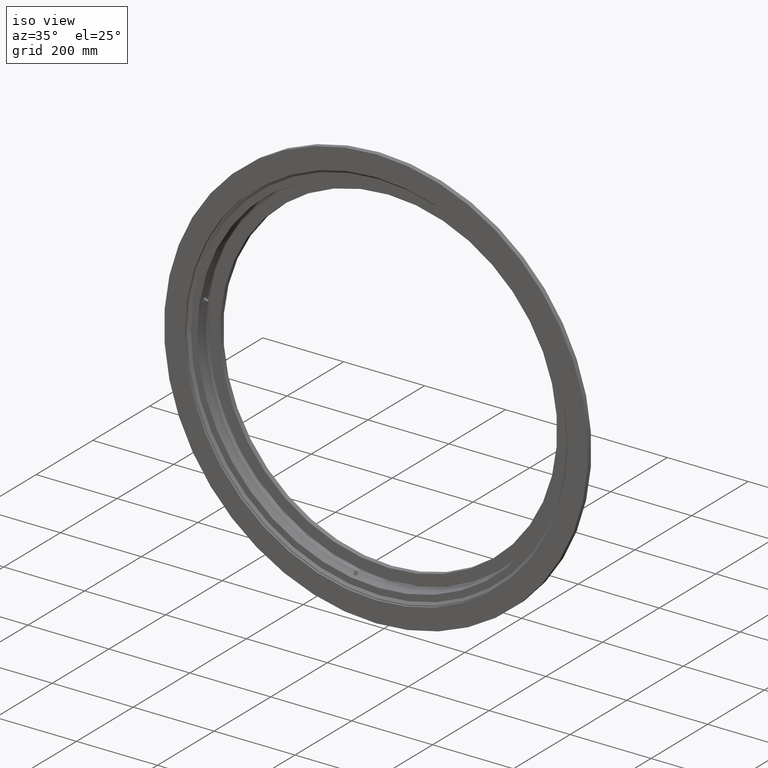
[diagram: clean part render]
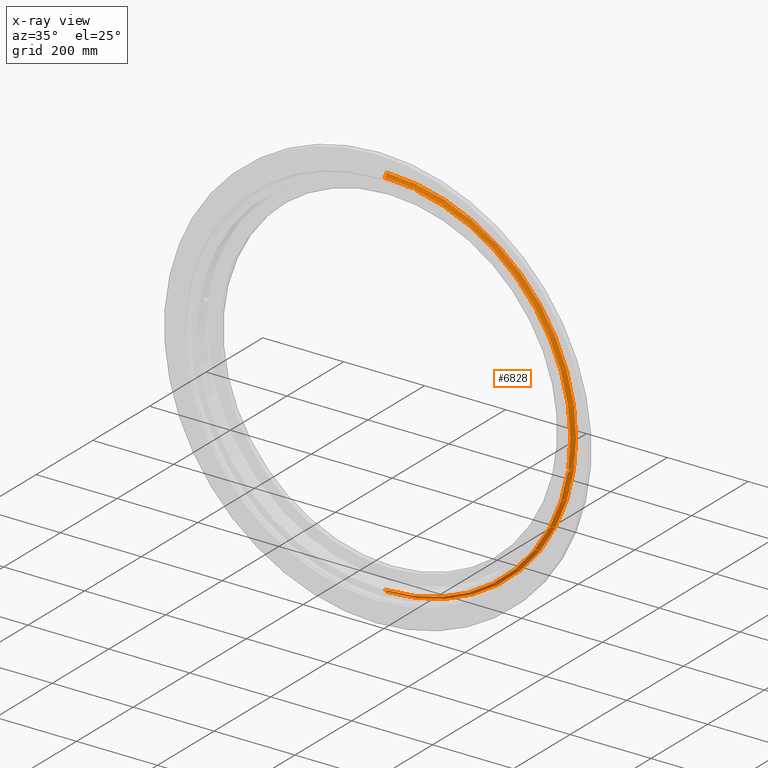
[diagram: x-ray — body ghosted, one internal face saturated and labeled with its STEP entity id]
A machine part, iso view, then the same camera in x-ray: the body is ghosted and one INTERNAL B-rep face — a face not visible from any outside direction — is saturated and labeled: STEP entity #6828.
In plain terms, the highlighted toroidal blend (fillet) surface has major radius 470.5 mm and minor (blend) radius 9.75 mm.
Its self-contained STEP definition (entity closure, byte-faithful):
#30 = CARTESIAN_POINT ( 'NONE',  ( 454.5167522345909100, 7.063376904789305800E-009, -75.53200936106139800 ) ) ;
#120 = EDGE_LOOP ( 'NONE', ( #3820, #3185, #3306, #6216, #154, #4078, #5155, #4867 ) ) ;
#154 = ORIENTED_EDGE ( 'NONE', *, *, #2843, .T. ) ;
#258 = DIRECTION ( 'NONE',  ( 0.0000000000000000000, 2.727064569436389700E-017, 1.000000000000000000 ) ) ;
#262 = VERTEX_POINT ( 'NONE', #3271 ) ;
#311 = CARTESIAN_POINT ( 'NONE',  ( 0.0000000000000000000, -1.507181843698312800E-014, 3.256198623627719100E-032 ) ) ;
#345 = CARTESIAN_POINT ( 'NONE',  ( 455.7563578420638400, 2.317145292477675900, -69.51898305825247300 ) ) ;
#378 = CARTESIAN_POINT ( 'NONE',  ( 455.3448283880019900, 3.142895896286841000, -73.69612099602652200 ) ) ;
#401 = CARTESIAN_POINT ( 'NONE',  ( 68.64254123647485500, 0.4638628217724400400, 455.6166510490828000 ) ) ;
#424 = CARTESIAN_POINT ( 'NONE',  ( 71.72304922026430100, 3.477345596098155400, 455.7823593507980600 ) ) ;
#442 = AXIS2_PLACEMENT_3D ( 'NONE', #2697, #7038, #3336 ) ;
#449 = CARTESIAN_POINT ( 'NONE',  ( 75.19942488686113800, 1.555922517842454300, 454.6961671188512900 ) ) ;
#880 = AXIS2_PLACEMENT_3D ( 'NONE', #3360, #7673, #3975 ) ;
#939 = DIRECTION ( 'NONE',  ( 0.0000000000000000000, 2.727064569436389700E-017, 1.000000000000000000 ) ) ;
#947 = FACE_OUTER_BOUND ( 'NONE', #120, .T. ) ;
#972 = AXIS2_PLACEMENT_3D ( 'NONE', #1571, #5904, #2181 ) ;
#981 = CARTESIAN_POINT ( 'NONE',  ( 455.8059959938030900, 2.780946763999005500, -70.02857579494249800 ) ) ;
#1005 = CARTESIAN_POINT ( 'NONE',  ( 455.1371690322586100, 2.780666092569631200, -74.25089298928098500 ) ) ;
#1023 = CARTESIAN_POINT ( 'NONE',  ( 68.80788981247546600, 1.136502601490754200, 455.6480176034600600 ) ) ;
#1047 = CARTESIAN_POINT ( 'NONE',  ( 72.40505526101979700, 3.500079167083206300, 455.6834672464926800 ) ) ;
#1076 = CARTESIAN_POINT ( 'NONE',  ( 75.42581188718851600, 0.9158801729350061200, 454.5753988342736400 ) ) ;
#1124 = CARTESIAN_POINT ( 'NONE',  ( 0.0000000000000000000, -1.507181843698312800E-014, 3.256198623627719100E-032 ) ) ;
#1189 = DIRECTION ( 'NONE',  ( 0.0000000000000000000, 2.727064569436389700E-017, 1.000000000000000000 ) ) ;
#1211 = EDGE_CURVE ( 'NONE', #1913, #2830, #3311, .T. ) ;
#1345 = CIRCLE ( 'NONE', #7830, 460.7500000000000000 ) ;
#1424 = EDGE_CURVE ( 'NONE', #262, #6254, #6522, .T. ) ;
#1570 = CARTESIAN_POINT ( 'NONE',  ( 75.53200936105980600, 7.039143815071931900E-009, 454.5167522345911900 ) ) ;
#1571 = CARTESIAN_POINT ( 'NONE',  ( 0.0000000000000000000, 9.486832980505129200, -1.104895824552873100E-015 ) ) ;
#1584 = AXIS2_PLACEMENT_3D ( 'NONE', #3034, #7363, #1189 ) ;
#1597 = CARTESIAN_POINT ( 'NONE',  ( 455.8320134549821300, 3.143848597389569100, -70.62232024105063000 ) ) ;
#1624 = CARTESIAN_POINT ( 'NONE',  ( 454.9308499952430200, 2.312723279783866400, -74.72380262887368500 ) ) ;
#1649 = CARTESIAN_POINT ( 'NONE',  ( 69.10434197384051900, 1.760785456273283600, 455.6985077470280300 ) ) ;
#1680 = CARTESIAN_POINT ( 'NONE',  ( 73.07506745097471400, 3.386280404545843700, 455.5328643036357900 ) ) ;
#1699 = CARTESIAN_POINT ( 'NONE',  ( 75.53200936108575500, 0.2299275658382368400, 454.5167522347552400 ) ) ;
#1757 = DIRECTION ( 'NONE',  ( 0.0000000000000000000, 2.727064569436389700E-017, 1.000000000000000000 ) ) ;
#1913 = VERTEX_POINT ( 'NONE', #1570 ) ;
#1938 = CARTESIAN_POINT ( 'NONE',  ( 0.0000000000000000000, 9.486832980505141700, 468.2500000000000000 ) ) ;
#1990 = CIRCLE ( 'NONE', #880, 9.749999999999980500 ) ;
#2181 = DIRECTION ( 'NONE',  ( 0.0000000000000000000, 2.593286563126033100E-017, 1.000000000000000000 ) ) ;
#2220 = CARTESIAN_POINT ( 'NONE',  ( 455.8190945627153500, 3.385967301092101000, -71.26710865256600900 ) ) ;
#2253 = CARTESIAN_POINT ( 'NONE',  ( 454.7495638197293600, 1.761086818151876000, -75.09621088071880000 ) ) ;
#2267 = CARTESIAN_POINT ( 'NONE',  ( 69.51897317664922600, 2.317094362334065800, 455.7563516797718000 ) ) ;
#2292 = CARTESIAN_POINT ( 'NONE',  ( 73.69743300123828100, 3.142291731975927600, 455.3444036681576100 ) ) ;
#2569 = CIRCLE ( 'NONE', #972, 468.2500000000000000 ) ;
#2694 = B_SPLINE_CURVE_WITH_KNOTS ( 'NONE', 3,
 ( #5959, #3505, #401, #4745, #1023, #5370, #1649, #5983, #2267, #6626, #2891, #7229, #3534, #7839, #4137, #424, #4775, #1047, #5394, #1680, #6011, #2292, #6646, #2922, #7255, #3551, #7864, #4167, #449, #4794, #1076, #5419, #1699, #6036 ),
 .UNSPECIFIED., .F., .F.,
 ( 4, 2, 2, 2, 2, 2, 2, 2, 2, 2, 2, 2, 2, 2, 2, 2, 4 ),
 ( 0.002214258912645436000, 0.002904421114273924400, 0.003594583315902412900, 0.004284745517530901300, 0.004974907719159389800, 0.005665069920787878200, 0.006355232122416366700, 0.007045394324044855100, 0.007735556525673343600, 0.008425718727301832100, 0.009115880928930321400, 0.009806043130558809000, 0.01049620533218729700, 0.01118636753381578600, 0.01187652973544427500, 0.01256669193707276100, 0.01325685413870125000 ),
 .UNSPECIFIED. ) ;
#2697 = CARTESIAN_POINT ( 'NONE',  ( 0.0000000000000000000, -1.046949008616244900E-015, 470.5000000000000000 ) ) ;
#2722 = CARTESIAN_POINT ( 'NONE',  ( 5.642560127071430800E-014, -1.507181843698310200E-014, -460.7500000000000000 ) ) ;
#2816 = CARTESIAN_POINT ( 'NONE',  ( 455.6347126706058900, 0.9147632963648068000, -68.73710445053200100 ) ) ;
#2830 = VERTEX_POINT ( 'NONE', #4009 ) ;
#2843 = EDGE_CURVE ( 'NONE', #2830, #3012, #5267, .T. ) ;
#2847 = CARTESIAN_POINT ( 'NONE',  ( 455.7553201192116000, 3.499950300698716700, -71.95107099752567600 ) ) ;
#2872 = CARTESIAN_POINT ( 'NONE',  ( 454.6093901562441600, 1.133874154650406300, -75.36358709238741900 ) ) ;
#2891 = CARTESIAN_POINT ( 'NONE',  ( 70.02808147060034100, 2.780666023130077000, 455.8059788052270800 ) ) ;
#2922 = CARTESIAN_POINT ( 'NONE',  ( 74.25073315819301500, 2.780796075758549300, 455.1372343907143000 ) ) ;
#2971 = CIRCLE ( 'NONE', #442, 9.749999999999980500 ) ;
#3012 = VERTEX_POINT ( 'NONE', #30 ) ;
#3034 = CARTESIAN_POINT ( 'NONE',  ( 0.0000000000000000000, -1.387778780781445700E-014, 0.0000000000000000000 ) ) ;
#3124 = CARTESIAN_POINT ( 'NONE',  ( 0.0000000000000000000, -1.507181843698312800E-014, 3.256198623627719100E-032 ) ) ;
#3185 = ORIENTED_EDGE ( 'NONE', *, *, #1424, .T. ) ;
#3271 = CARTESIAN_POINT ( 'NONE',  ( 0.0000000000000000000, -1.507181843698315000E-014, 460.7500000000000000 ) ) ;
#3306 = ORIENTED_EDGE ( 'NONE', *, *, #7127, .T. ) ;
#3311 = CIRCLE ( 'NONE', #5373, 460.7500000000000000 ) ;
#3336 = DIRECTION ( 'NONE',  ( 0.0000000000000000000, 0.0000000000000000000, 1.000000000000000000 ) ) ;
#3360 = CARTESIAN_POINT ( 'NONE',  ( 5.761963189988297600E-014, -2.670862660701266600E-014, -470.5000000000000000 ) ) ;
#3453 = CARTESIAN_POINT ( 'NONE',  ( 455.6800819576031400, 1.561176932548965700, -68.99246840770311500 ) ) ;
#3481 = CARTESIAN_POINT ( 'NONE',  ( 455.6379191685296600, 3.476988247409613700, -72.63412040909854300 ) ) ;
#3505 = CARTESIAN_POINT ( 'NONE',  ( 68.61819097691967800, 0.2322878711510714100, 455.6117934900383400 ) ) ;
#3511 = CARTESIAN_POINT ( 'NONE',  ( 454.5289121408536600, 0.4643480202554621800, -75.51032552251092500 ) ) ;
#3534 = CARTESIAN_POINT ( 'NONE',  ( 70.62174576713330500, 3.143564919738144300, 455.8320044318415400 ) ) ;
#3551 = CARTESIAN_POINT ( 'NONE',  ( 74.72359937313575500, 2.312862076554390800, 454.9309306208723500 ) ) ;
#3806 = EDGE_CURVE ( 'NONE', #7373, #4750, #1990, .T. ) ;
#3820 = ORIENTED_EDGE ( 'NONE', *, *, #7340, .T. ) ;
#3975 = DIRECTION ( 'NONE',  ( 1.224646799147350000E-016, 0.0000000000000000000, -1.000000000000000000 ) ) ;
#4009 = CARTESIAN_POINT ( 'NONE',  ( 455.6117934898724700, 7.038408727019926200E-009, -68.61819097689542000 ) ) ;
#4069 = CARTESIAN_POINT ( 'NONE',  ( 455.7366362990445100, 2.138891196664505700, -69.36723646452011800 ) ) ;
#4078 = ORIENTED_EDGE ( 'NONE', *, *, #4886, .T. ) ;
#4100 = CARTESIAN_POINT ( 'NONE',  ( 455.4734472082337800, 3.319207562856280300, -73.28781619941862900 ) ) ;
#4119 = CARTESIAN_POINT ( 'NONE',  ( 454.5167522345909100, 7.063376904789305800E-009, -75.53200936106139800 ) ) ;
#4137 = CARTESIAN_POINT ( 'NONE',  ( 71.26925221605290500, 3.386474754015695900, 455.8189507365225400 ) ) ;
#4167 = CARTESIAN_POINT ( 'NONE',  ( 75.09649298768070500, 1.760636558496426300, 454.7494245291886200 ) ) ;
#4237 = TOROIDAL_SURFACE ( 'NONE', #1584, 470.5000000000000000, 9.750000000000000000 ) ;
#4662 = DIRECTION ( 'NONE',  ( -0.0000000000000000000, 1.000000000000000000, -2.727064569436389700E-017 ) ) ;
#4671 = CARTESIAN_POINT ( 'NONE',  ( 455.6117934900373100, 0.2311236157477502000, -68.61819097692148300 ) ) ;
#4698 = CARTESIAN_POINT ( 'NONE',  ( 455.7909613267823900, 2.637435123388310200, -69.84938018348815100 ) ) ;
#4722 = CARTESIAN_POINT ( 'NONE',  ( 455.2756235952520000, 3.033301237833768900, -73.89135563706298600 ) ) ;
#4745 = CARTESIAN_POINT ( 'NONE',  ( 68.73686977358444500, 0.9139134754501676600, 455.6346684838886200 ) ) ;
#4750 = VERTEX_POINT ( 'NONE', #2722 ) ;
#4775 = CARTESIAN_POINT ( 'NONE',  ( 71.95024271456456700, 3.499920431092869800, 455.7554394456050800 ) ) ;
#4794 = CARTESIAN_POINT ( 'NONE',  ( 75.36338615533588800, 1.134345127345165500, 454.6094954657635300 ) ) ;
#4867 = ORIENTED_EDGE ( 'NONE', *, *, #7893, .F. ) ;
#4886 = EDGE_CURVE ( 'NONE', #3012, #4750, #1345, .T. ) ;
#5155 = ORIENTED_EDGE ( 'NONE', *, *, #3806, .F. ) ;
#5201 = CARTESIAN_POINT ( 'NONE',  ( 5.734408637007481500E-014, 9.486832980505116800, -468.2500000000000000 ) ) ;
#5267 = B_SPLINE_CURVE_WITH_KNOTS ( 'NONE', 3,
 ( #6519, #4671, #6544, #2816, #7154, #3453, #7767, #4069, #345, #4698, #981, #5319, #1597, #5941, #2220, #6570, #2847, #7185, #3481, #7792, #4100, #378, #4722, #1005, #5348, #1624, #5963, #2253, #6605, #2872, #7211, #3511, #7820, #4119 ),
 .UNSPECIFIED., .F., .F.,
 ( 4, 2, 2, 2, 2, 2, 2, 2, 2, 2, 2, 2, 2, 2, 2, 2, 4 ),
 ( 0.009169823557964869300, 0.009859287553558759200, 0.01054875154915265100, 0.01123821554474654100, 0.01192767954034043000, 0.01261714353593432000, 0.01330660753152821000, 0.01399607152712210000, 0.01468553552271599000, 0.01537499951830988000, 0.01606446351390377100, 0.01675392750949766100, 0.01744339150509155100, 0.01813285550068544100, 0.01882231949627933100, 0.01951178349187322100, 0.02020124748746711000 ),
 .UNSPECIFIED. ) ;
#5319 = CARTESIAN_POINT ( 'NONE',  ( 455.8266323239357100, 3.034703491103032800, -70.41536213946777400 ) ) ;
#5348 = CARTESIAN_POINT ( 'NONE',  ( 455.0669404635986000, 2.636111117445182600, -74.41805909901582100 ) ) ;
#5370 = CARTESIAN_POINT ( 'NONE',  ( 68.99218917804226700, 1.560489438792352500, 455.6800326299145900 ) ) ;
#5373 = AXIS2_PLACEMENT_3D ( 'NONE', #3124, #6364, #258 ) ;
#5394 = CARTESIAN_POINT ( 'NONE',  ( 72.63490064254615700, 3.476834991492630900, 455.6377359702040600 ) ) ;
#5419 = CARTESIAN_POINT ( 'NONE',  ( 75.51058303343731400, 0.4627778939154482700, 454.5287699830680600 ) ) ;
#5478 = DIRECTION ( 'NONE',  ( -0.0000000000000000000, 1.000000000000000000, -2.727064569436389700E-017 ) ) ;
#5719 = VERTEX_POINT ( 'NONE', #1938 ) ;
#5904 = DIRECTION ( 'NONE',  ( -0.0000000000000000000, 1.000000000000000000, -2.727064569436389700E-017 ) ) ;
#5941 = CARTESIAN_POINT ( 'NONE',  ( 455.8281664440535800, 3.318745913185343200, -71.04716696744817700 ) ) ;
#5959 = CARTESIAN_POINT ( 'NONE',  ( 68.61819097689382800, 7.033549841088302600E-009, 455.6117934898728100 ) ) ;
#5963 = CARTESIAN_POINT ( 'NONE',  ( 454.8665553685774500, 2.137707270847508200, -74.85902343656800900 ) ) ;
#5983 = CARTESIAN_POINT ( 'NONE',  ( 69.36733460414053800, 2.139073458457483800, 455.7366528976778000 ) ) ;
#6011 = CARTESIAN_POINT ( 'NONE',  ( 73.28742435842065100, 3.319414303176722500, 455.4735820443992200 ) ) ;
#6036 = CARTESIAN_POINT ( 'NONE',  ( 75.53200936105980600, 7.039143815071931900E-009, 454.5167522345911900 ) ) ;
#6216 = ORIENTED_EDGE ( 'NONE', *, *, #1211, .T. ) ;
#6254 = VERTEX_POINT ( 'NONE', #6970 ) ;
#6364 = DIRECTION ( 'NONE',  ( -0.0000000000000000000, 1.000000000000000000, -2.727064569436389700E-017 ) ) ;
#6454 = AXIS2_PLACEMENT_3D ( 'NONE', #1124, #5478, #1757 ) ;
#6519 = CARTESIAN_POINT ( 'NONE',  ( 455.6117934898724700, 7.038408727019926200E-009, -68.61819097689542000 ) ) ;
#6522 = CIRCLE ( 'NONE', #6454, 460.7500000000000000 ) ;
#6544 = CARTESIAN_POINT ( 'NONE',  ( 455.6166704651247400, 0.4646008160113644900, -68.64263955738610400 ) ) ;
#6570 = CARTESIAN_POINT ( 'NONE',  ( 455.7823995393595700, 3.477395316703884900, -71.72290888112034700 ) ) ;
#6605 = CARTESIAN_POINT ( 'NONE',  ( 454.6963735346122900, 1.556885230854411900, -75.19903267988479500 ) ) ;
#6626 = CARTESIAN_POINT ( 'NONE',  ( 69.84871824568213600, 2.636834701832323700, 455.7908971169719600 ) ) ;
#6646 = CARTESIAN_POINT ( 'NONE',  ( 73.89116432879704600, 3.033417971519430700, 455.2756934536444600 ) ) ;
#6828 = ADVANCED_FACE ( 'NONE', ( #947 ), #4237, .F. ) ;
#6970 = CARTESIAN_POINT ( 'NONE',  ( 68.61819097689382800, 7.033549841088302600E-009, 455.6117934898728100 ) ) ;
#7038 = DIRECTION ( 'NONE',  ( -1.000000000000000000, 0.0000000000000000000, 0.0000000000000000000 ) ) ;
#7127 = EDGE_CURVE ( 'NONE', #6254, #1913, #2694, .T. ) ;
#7154 = CARTESIAN_POINT ( 'NONE',  ( 455.6479312594900100, 1.135324848001335400, -68.80739749842099700 ) ) ;
#7185 = CARTESIAN_POINT ( 'NONE',  ( 455.6834456032874000, 3.500049550254120200, -72.40511765881140600 ) ) ;
#7211 = CARTESIAN_POINT ( 'NONE',  ( 454.5753737606660300, 0.9154473015448948400, -75.42585653699518400 ) ) ;
#7229 = CARTESIAN_POINT ( 'NONE',  ( 70.41681666861751400, 3.035614080351450600, 455.8267007198971300 ) ) ;
#7255 = CARTESIAN_POINT ( 'NONE',  ( 74.41934573917713200, 2.634826143890548300, 455.0663775743073000 ) ) ;
#7340 = EDGE_CURVE ( 'NONE', #5719, #262, #2971, .T. ) ;
#7363 = DIRECTION ( 'NONE',  ( -0.0000000000000000000, 1.000000000000000000, -2.727064569436389700E-017 ) ) ;
#7373 = VERTEX_POINT ( 'NONE', #5201 ) ;
#7673 = DIRECTION ( 'NONE',  ( 1.000000000000000000, 3.339690896028429500E-033, 1.224646799147353200E-016 ) ) ;
#7767 = CARTESIAN_POINT ( 'NONE',  ( 455.6985841622988600, 1.761560895922959800, -69.10485254627005200 ) ) ;
#7792 = CARTESIAN_POINT ( 'NONE',  ( 455.5327297236955200, 3.386169127354029800, -73.07564361836206500 ) ) ;
#7820 = CARTESIAN_POINT ( 'NONE',  ( 454.5167522347558700, 0.2302317774923740300, -75.53200936108592600 ) ) ;
#7830 = AXIS2_PLACEMENT_3D ( 'NONE', #311, #4662, #939 ) ;
#7839 = CARTESIAN_POINT ( 'NONE',  ( 71.04646794681248400, 3.318505188087563300, 455.8281869561701600 ) ) ;
#7864 = CARTESIAN_POINT ( 'NONE',  ( 74.85876178823572500, 2.138125044859382900, 454.8666845679855400 ) ) ;
#7893 = EDGE_CURVE ( 'NONE', #5719, #7373, #2569, .T. ) ;